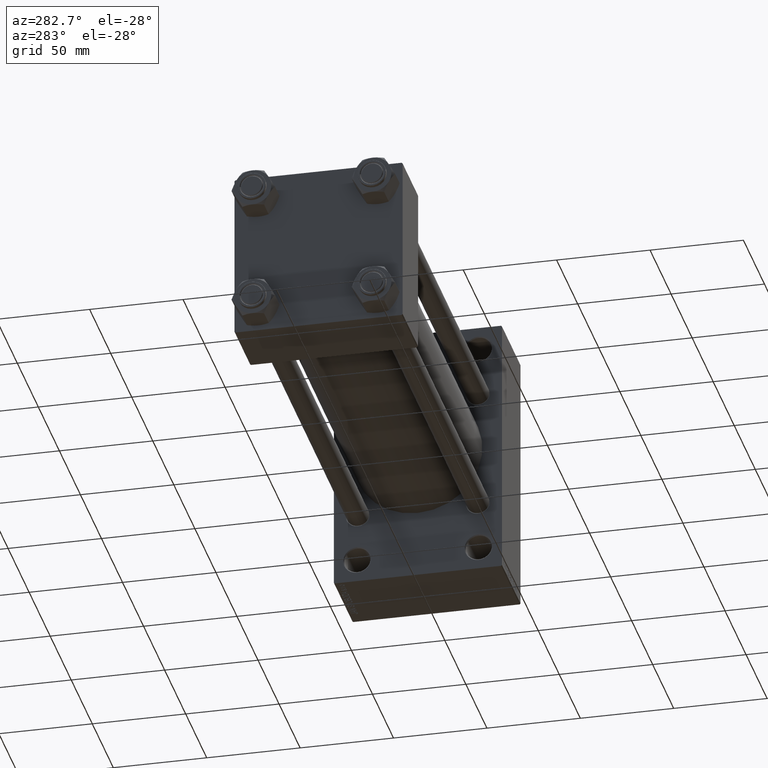
[diagram: clean part render]
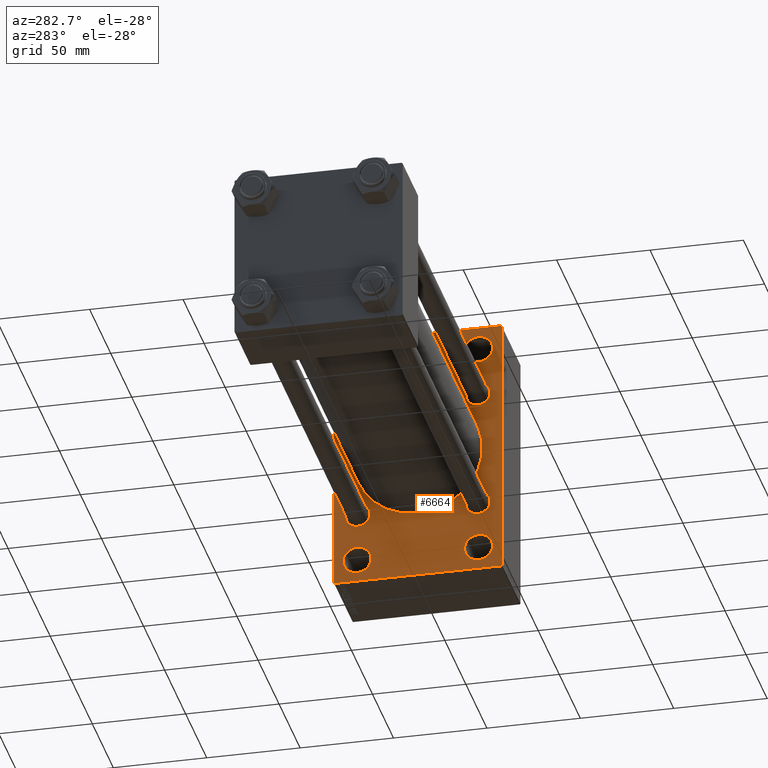
[diagram: same view with one face highlighted and labeled with its STEP entity id]
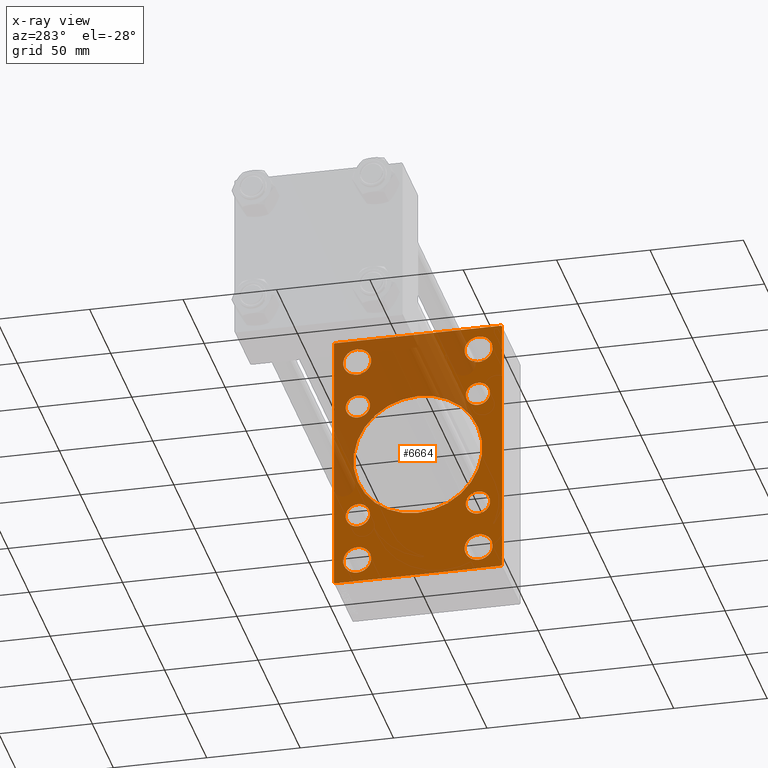
[diagram: x-ray of the same camera — body ghosted, the highlighted face saturated]
A machine part, auxiliary view. The second image highlights one B-rep face of the part: STEP entity #6664.
The next image is the same camera in x-ray: the body ghosted, the highlighted face saturated — about 39% of this face is hidden behind the body in this view.
In plain terms, the highlighted planar face has unit normal (-1, 0, 0).
Its self-contained STEP definition (entity closure, byte-faithful):
#146 = FACE_BOUND ( 'NONE', #16994, .T. ) ;
#624 = DIRECTION ( 'NONE',  ( -1.000000000000000000, 0.000000000000000000, -0.000000000000000000 ) ) ;
#946 = VERTEX_POINT ( 'NONE', #14741 ) ;
#951 = VERTEX_POINT ( 'NONE', #17379 ) ;
#1373 = ORIENTED_EDGE ( 'NONE', *, *, #7199, .F. ) ;
#1492 = DIRECTION ( 'NONE',  ( 1.000000000000000000, -0.000000000000000000, 0.000000000000000000 ) ) ;
#1612 = CARTESIAN_POINT ( 'NONE',  ( 236.0000000000000284, -32.50000000000000000, -58.49999999999999289 ) ) ;
#1715 = VERTEX_POINT ( 'NONE', #9282 ) ;
#2222 = DIRECTION ( 'NONE',  ( 1.000000000000000000, 0.000000000000000000, 0.000000000000000000 ) ) ;
#2293 = AXIS2_PLACEMENT_3D ( 'NONE', #44698, #1492, #40879 ) ;
#2393 = CARTESIAN_POINT ( 'NONE',  ( 236.0000000000000284, -32.14999999999997726, 32.15000000000001279 ) ) ;
#2903 = DIRECTION ( 'NONE',  ( 0.000000000000000000, 0.000000000000000000, 1.000000000000000000 ) ) ;
#2918 = VERTEX_POINT ( 'NONE', #18600 ) ;
#3457 = ORIENTED_EDGE ( 'NONE', *, *, #37472, .T. ) ;
#3730 = LINE ( 'NONE', #33059, #34147 ) ;
#3852 = VERTEX_POINT ( 'NONE', #32441 ) ;
#3890 = VERTEX_POINT ( 'NONE', #11927 ) ;
#3976 = FACE_BOUND ( 'NONE', #46977, .T. ) ;
#4479 = ORIENTED_EDGE ( 'NONE', *, *, #5261, .T. ) ;
#4675 = FACE_BOUND ( 'NONE', #44259, .T. ) ;
#4704 = CARTESIAN_POINT ( 'NONE',  ( 236.0000000000000284, 32.50000000000000711, -66.00000000000002842 ) ) ;
#4780 = CARTESIAN_POINT ( 'NONE',  ( 236.0000000000000284, -2.602085213965210642E-15, 34.50000000000000000 ) ) ;
#4902 = CARTESIAN_POINT ( 'NONE',  ( 236.0000000000000284, -32.50000000000000000, 58.50000000000000711 ) ) ;
#5067 = DIRECTION ( 'NONE',  ( 1.000000000000000000, 0.000000000000000000, 0.000000000000000000 ) ) ;
#5261 = EDGE_CURVE ( 'NONE', #946, #13400, #46078, .T. ) ;
#5270 = CIRCLE ( 'NONE', #40426, 6.500000000000005329 ) ;
#5304 = CIRCLE ( 'NONE', #39605, 7.500000000000034639 ) ;
#5469 = CARTESIAN_POINT ( 'NONE',  ( 236.0000000000000284, 32.14999999999999147, -32.15000000000000568 ) ) ;
#5733 = DIRECTION ( 'NONE',  ( 0.000000000000000000, -1.000000000000000000, -1.541976423090495387E-16 ) ) ;
#6093 = CIRCLE ( 'NONE', #25898, 34.50000000000000000 ) ;
#6097 = CIRCLE ( 'NONE', #38073, 7.500000000000034639 ) ;
#6664 = ADVANCED_FACE ( 'NONE', ( #3976, #26380, #4675, #11371, #33063, #40238, #146, #39995, #10892, #33298 ), #14710, .T. ) ;
#6946 = LINE ( 'NONE', #8375, #9888 ) ;
#6955 = DIRECTION ( 'NONE',  ( 0.000000000000000000, 0.000000000000000000, 1.000000000000000000 ) ) ;
#7067 = VERTEX_POINT ( 'NONE', #42782 ) ;
#7199 = EDGE_CURVE ( 'NONE', #9813, #40378, #44425, .T. ) ;
#7435 = DIRECTION ( 'NONE',  ( 0.000000000000000000, 0.000000000000000000, 1.000000000000000000 ) ) ;
#7518 = ORIENTED_EDGE ( 'NONE', *, *, #29818, .T. ) ;
#7939 = VECTOR ( 'NONE', #41423, 1000.000000000000114 ) ;
#8241 = ORIENTED_EDGE ( 'NONE', *, *, #37958, .T. ) ;
#8283 = LINE ( 'NONE', #37832, #7939 ) ;
#8368 = AXIS2_PLACEMENT_3D ( 'NONE', #20504, #16221, #12865 ) ;
#8375 = CARTESIAN_POINT ( 'NONE',  ( 236.0000000000000284, 45.00000000000001421, -70.99999999999998579 ) ) ;
#8661 = EDGE_LOOP ( 'NONE', ( #16165, #3457 ) ) ;
#8947 = AXIS2_PLACEMENT_3D ( 'NONE', #21451, #26434, #29536 ) ;
#9107 = EDGE_CURVE ( 'NONE', #20158, #2918, #43257, .T. ) ;
#9135 = AXIS2_PLACEMENT_3D ( 'NONE', #45156, #5067, #37985 ) ;
#9282 = CARTESIAN_POINT ( 'NONE',  ( 236.0000000000000284, -32.14999999999997726, 38.65000000000002700 ) ) ;
#9328 = DIRECTION ( 'NONE',  ( 0.000000000000000000, 0.000000000000000000, 1.000000000000000000 ) ) ;
#9371 = CIRCLE ( 'NONE', #42878, 7.500000000000041744 ) ;
#9560 = ORIENTED_EDGE ( 'NONE', *, *, #11477, .T. ) ;
#9643 = VERTEX_POINT ( 'NONE', #28339 ) ;
#9813 = VERTEX_POINT ( 'NONE', #40266 ) ;
#9888 = VECTOR ( 'NONE', #33169, 1000.000000000000000 ) ;
#10091 = EDGE_CURVE ( 'NONE', #38100, #44901, #13472, .T. ) ;
#10155 = CIRCLE ( 'NONE', #19258, 7.500000000000034639 ) ;
#10210 = CARTESIAN_POINT ( 'NONE',  ( 236.0000000000000284, 44.50000000000004263, -70.99999999999998579 ) ) ;
#10892 = FACE_BOUND ( 'NONE', #23136, .T. ) ;
#11086 = VECTOR ( 'NONE', #11730, 1000.000000000000000 ) ;
#11204 = EDGE_CURVE ( 'NONE', #34633, #29257, #34051, .T. ) ;
#11226 = AXIS2_PLACEMENT_3D ( 'NONE', #29118, #32692, #6955 ) ;
#11276 = EDGE_CURVE ( 'NONE', #1715, #14034, #29490, .T. ) ;
#11371 = FACE_BOUND ( 'NONE', #19879, .T. ) ;
#11477 = EDGE_CURVE ( 'NONE', #3890, #26836, #18847, .T. ) ;
#11730 = DIRECTION ( 'NONE',  ( 0.000000000000000000, 0.000000000000000000, -1.000000000000000000 ) ) ;
#11879 = ORIENTED_EDGE ( 'NONE', *, *, #12152, .T. ) ;
#11927 = CARTESIAN_POINT ( 'NONE',  ( 236.0000000000000284, 32.14999999999999147, 38.65000000000001279 ) ) ;
#12141 = DIRECTION ( 'NONE',  ( 0.000000000000000000, 0.000000000000000000, 1.000000000000000000 ) ) ;
#12152 = EDGE_CURVE ( 'NONE', #14034, #1715, #14284, .T. ) ;
#12225 = CARTESIAN_POINT ( 'NONE',  ( 236.0000000000000284, -32.14999999999997726, -38.65000000000001990 ) ) ;
#12865 = DIRECTION ( 'NONE',  ( 0.000000000000000000, 0.000000000000000000, 1.000000000000000000 ) ) ;
#12915 = EDGE_CURVE ( 'NONE', #42385, #40378, #37203, .T. ) ;
#12962 = ORIENTED_EDGE ( 'NONE', *, *, #11276, .T. ) ;
#13058 = CARTESIAN_POINT ( 'NONE',  ( 236.0000000000000284, -57.75000000000028422, 57.74999999999948841 ) ) ;
#13400 = VERTEX_POINT ( 'NONE', #4704 ) ;
#13445 = DIRECTION ( 'NONE',  ( 0.000000000000000000, -4.886545002751570165E-17, -1.000000000000000000 ) ) ;
#13472 = CIRCLE ( 'NONE', #40132, 7.500000000000034639 ) ;
#13790 = CIRCLE ( 'NONE', #30521, 6.500000000000005329 ) ;
#13864 = CARTESIAN_POINT ( 'NONE',  ( 236.0000000000000284, -32.14999999999997726, -32.15000000000001279 ) ) ;
#14034 = VERTEX_POINT ( 'NONE', #41452 ) ;
#14284 = CIRCLE ( 'NONE', #44778, 6.500000000000005329 ) ;
#14695 = ORIENTED_EDGE ( 'NONE', *, *, #29644, .T. ) ;
#14710 = PLANE ( 'NONE',  #23278 ) ;
#14741 = CARTESIAN_POINT ( 'NONE',  ( 236.0000000000000284, 32.50000000000000711, -50.99999999999996447 ) ) ;
#15976 = DIRECTION ( 'NONE',  ( 0.000000000000000000, 0.000000000000000000, 1.000000000000000000 ) ) ;
#16165 = ORIENTED_EDGE ( 'NONE', *, *, #19594, .T. ) ;
#16221 = DIRECTION ( 'NONE',  ( 1.000000000000000000, -0.000000000000000000, 0.000000000000000000 ) ) ;
#16230 = EDGE_LOOP ( 'NONE', ( #9560, #41826 ) ) ;
#16463 = VERTEX_POINT ( 'NONE', #26246 ) ;
#16747 = CARTESIAN_POINT ( 'NONE',  ( 236.0000000000000284, -32.50000000000000000, 58.50000000000000711 ) ) ;
#16994 = EDGE_LOOP ( 'NONE', ( #29562, #33118 ) ) ;
#17379 = CARTESIAN_POINT ( 'NONE',  ( 236.0000000000000284, 32.14999999999999147, -38.65000000000001279 ) ) ;
#17863 = DIRECTION ( 'NONE',  ( 0.000000000000000000, 0.000000000000000000, 1.000000000000000000 ) ) ;
#17885 = EDGE_CURVE ( 'NONE', #2918, #23469, #3730, .T. ) ;
#18600 = CARTESIAN_POINT ( 'NONE',  ( 236.0000000000000284, 45.00000000000001421, -70.50000000000001421 ) ) ;
#18847 = CIRCLE ( 'NONE', #8947, 6.499999999999999112 ) ;
#18987 = AXIS2_PLACEMENT_3D ( 'NONE', #5469, #24310, #15976 ) ;
#19258 = AXIS2_PLACEMENT_3D ( 'NONE', #4902, #30639, #26605 ) ;
#19361 = CARTESIAN_POINT ( 'NONE',  ( 236.0000000000000284, -44.99999999999997158, -70.50000000000000000 ) ) ;
#19387 = ORIENTED_EDGE ( 'NONE', *, *, #11204, .T. ) ;
#19594 = EDGE_CURVE ( 'NONE', #20269, #37603, #41870, .T. ) ;
#19879 = EDGE_LOOP ( 'NONE', ( #31875, #19387 ) ) ;
#20158 = VERTEX_POINT ( 'NONE', #37762 ) ;
#20269 = VERTEX_POINT ( 'NONE', #34166 ) ;
#20504 = CARTESIAN_POINT ( 'NONE',  ( 236.0000000000000284, 32.14999999999999147, -32.15000000000000568 ) ) ;
#20518 = CARTESIAN_POINT ( 'NONE',  ( 236.0000000000000284, 45.00000000000002132, 71.00000000000000000 ) ) ;
#20757 = DIRECTION ( 'NONE',  ( 1.000000000000000000, -0.000000000000000000, 0.000000000000000000 ) ) ;
#21253 = EDGE_CURVE ( 'NONE', #951, #16463, #28904, .T. ) ;
#21358 = VECTOR ( 'NONE', #31405, 1000.000000000000000 ) ;
#21451 = CARTESIAN_POINT ( 'NONE',  ( 236.0000000000000284, 32.14999999999999147, 32.15000000000000568 ) ) ;
#21700 = CARTESIAN_POINT ( 'NONE',  ( 236.0000000000000284, 32.50000000000000711, -58.50000000000000000 ) ) ;
#21790 = EDGE_CURVE ( 'NONE', #26836, #3890, #29725, .T. ) ;
#22128 = VERTEX_POINT ( 'NONE', #4780 ) ;
#22570 = EDGE_CURVE ( 'NONE', #9813, #7067, #45761, .T. ) ;
#22849 = CIRCLE ( 'NONE', #9135, 34.50000000000000000 ) ;
#23136 = EDGE_LOOP ( 'NONE', ( #14695, #41338 ) ) ;
#23236 = CARTESIAN_POINT ( 'NONE',  ( 236.0000000000000284, -44.49999999999994316, -71.00000000000000000 ) ) ;
#23278 = AXIS2_PLACEMENT_3D ( 'NONE', #29718, #624, #40951 ) ;
#23469 = VERTEX_POINT ( 'NONE', #10210 ) ;
#23672 = CIRCLE ( 'NONE', #18987, 6.500000000000005329 ) ;
#23712 = ORIENTED_EDGE ( 'NONE', *, *, #17885, .T. ) ;
#24310 = DIRECTION ( 'NONE',  ( 1.000000000000000000, -0.000000000000000000, 0.000000000000000000 ) ) ;
#24714 = CARTESIAN_POINT ( 'NONE',  ( 236.0000000000000284, 32.50000000000000711, 50.99999999999997868 ) ) ;
#24907 = EDGE_CURVE ( 'NONE', #9643, #7067, #38887, .T. ) ;
#25000 = VECTOR ( 'NONE', #29567, 1000.000000000000000 ) ;
#25898 = AXIS2_PLACEMENT_3D ( 'NONE', #31543, #2222, #38726 ) ;
#26081 = CARTESIAN_POINT ( 'NONE',  ( 236.0000000000000284, -32.50000000000000000, 66.00000000000004263 ) ) ;
#26122 = ORIENTED_EDGE ( 'NONE', *, *, #28630, .T. ) ;
#26246 = CARTESIAN_POINT ( 'NONE',  ( 236.0000000000000284, 32.14999999999999147, -25.64999999999999858 ) ) ;
#26257 = CARTESIAN_POINT ( 'NONE',  ( 236.0000000000000284, -32.14999999999997726, 32.15000000000001279 ) ) ;
#26380 = FACE_BOUND ( 'NONE', #8661, .T. ) ;
#26434 = DIRECTION ( 'NONE',  ( 1.000000000000000000, -0.000000000000000000, 0.000000000000000000 ) ) ;
#26436 = AXIS2_PLACEMENT_3D ( 'NONE', #26257, #41061, #45348 ) ;
#26605 = DIRECTION ( 'NONE',  ( 0.000000000000000000, 0.000000000000000000, 1.000000000000000000 ) ) ;
#26836 = VERTEX_POINT ( 'NONE', #34363 ) ;
#27064 = EDGE_CURVE ( 'NONE', #13400, #946, #5304, .T. ) ;
#27090 = CARTESIAN_POINT ( 'NONE',  ( 236.0000000000000284, -32.50000000000000000, 50.99999999999997868 ) ) ;
#27123 = EDGE_CURVE ( 'NONE', #29257, #34633, #6097, .T. ) ;
#27961 = DIRECTION ( 'NONE',  ( 1.000000000000000000, -0.000000000000000000, 0.000000000000000000 ) ) ;
#28339 = CARTESIAN_POINT ( 'NONE',  ( 236.0000000000000284, 44.50000000000002132, 71.00000000000000000 ) ) ;
#28630 = EDGE_CURVE ( 'NONE', #3852, #36315, #5270, .T. ) ;
#28904 = CIRCLE ( 'NONE', #8368, 6.500000000000005329 ) ;
#28915 = CARTESIAN_POINT ( 'NONE',  ( 236.0000000000000284, 45.00000000000002132, 71.00000000000000000 ) ) ;
#29050 = EDGE_CURVE ( 'NONE', #16463, #951, #23672, .T. ) ;
#29080 = DIRECTION ( 'NONE',  ( 0.000000000000000000, 0.000000000000000000, 1.000000000000000000 ) ) ;
#29118 = CARTESIAN_POINT ( 'NONE',  ( 236.0000000000000284, 32.50000000000000711, 58.50000000000000711 ) ) ;
#29257 = VERTEX_POINT ( 'NONE', #40928 ) ;
#29332 = CARTESIAN_POINT ( 'NONE',  ( 236.0000000000000284, -57.74999999999937472, -57.75000000000096634 ) ) ;
#29490 = CIRCLE ( 'NONE', #26436, 6.500000000000005329 ) ;
#29536 = DIRECTION ( 'NONE',  ( 0.000000000000000000, 0.000000000000000000, 1.000000000000000000 ) ) ;
#29562 = ORIENTED_EDGE ( 'NONE', *, *, #29050, .T. ) ;
#29567 = DIRECTION ( 'NONE',  ( 0.000000000000000000, -0.7071067811865573427, 0.7071067811865378028 ) ) ;
#29644 = EDGE_CURVE ( 'NONE', #22128, #45701, #22849, .T. ) ;
#29718 = CARTESIAN_POINT ( 'NONE',  ( 236.0000000000000284, 0.000000000000000000, 0.000000000000000000 ) ) ;
#29725 = CIRCLE ( 'NONE', #2293, 6.499999999999999112 ) ;
#29818 = EDGE_CURVE ( 'NONE', #23469, #42385, #6946, .T. ) ;
#30016 = CARTESIAN_POINT ( 'NONE',  ( 236.0000000000000284, 32.50000000000000711, 58.50000000000000711 ) ) ;
#30521 = AXIS2_PLACEMENT_3D ( 'NONE', #31431, #34547, #46490 ) ;
#30639 = DIRECTION ( 'NONE',  ( 1.000000000000000000, -0.000000000000000000, 0.000000000000000000 ) ) ;
#30691 = DIRECTION ( 'NONE',  ( 1.000000000000000000, -0.000000000000000000, 0.000000000000000000 ) ) ;
#30803 = EDGE_LOOP ( 'NONE', ( #7518, #42232, #1373, #38340, #45521, #38456, #34142, #23712 ) ) ;
#31223 = DIRECTION ( 'NONE',  ( 0.000000000000000000, 0.000000000000000000, 1.000000000000000000 ) ) ;
#31405 = DIRECTION ( 'NONE',  ( -0.000000000000000000, 0.7071067811865426878, 0.7071067811865524577 ) ) ;
#31431 = CARTESIAN_POINT ( 'NONE',  ( 236.0000000000000284, -32.14999999999997726, -32.15000000000001279 ) ) ;
#31543 = CARTESIAN_POINT ( 'NONE',  ( 236.0000000000000284, -2.602085213965210642E-15, 0.000000000000000000 ) ) ;
#31604 = EDGE_CURVE ( 'NONE', #45701, #22128, #6093, .T. ) ;
#31875 = ORIENTED_EDGE ( 'NONE', *, *, #27123, .T. ) ;
#31943 = ORIENTED_EDGE ( 'NONE', *, *, #33124, .T. ) ;
#32441 = CARTESIAN_POINT ( 'NONE',  ( 236.0000000000000284, -32.14999999999997726, -25.65000000000000568 ) ) ;
#32692 = DIRECTION ( 'NONE',  ( 1.000000000000000000, -0.000000000000000000, 0.000000000000000000 ) ) ;
#32779 = CARTESIAN_POINT ( 'NONE',  ( 236.0000000000000284, 1.622946243093158675E-15, -34.50000000000000000 ) ) ;
#33059 = CARTESIAN_POINT ( 'NONE',  ( 236.0000000000000284, 57.74999999999938893, -57.75000000000100187 ) ) ;
#33063 = FACE_BOUND ( 'NONE', #38398, .T. ) ;
#33118 = ORIENTED_EDGE ( 'NONE', *, *, #21253, .T. ) ;
#33124 = EDGE_CURVE ( 'NONE', #36315, #3852, #13790, .T. ) ;
#33169 = DIRECTION ( 'NONE',  ( 0.000000000000000000, -1.000000000000000000, -1.541976423090495633E-16 ) ) ;
#33298 = FACE_OUTER_BOUND ( 'NONE', #30803, .T. ) ;
#33367 = DIRECTION ( 'NONE',  ( 1.000000000000000000, -0.000000000000000000, 0.000000000000000000 ) ) ;
#34051 = CIRCLE ( 'NONE', #11226, 7.500000000000034639 ) ;
#34142 = ORIENTED_EDGE ( 'NONE', *, *, #9107, .T. ) ;
#34147 = VECTOR ( 'NONE', #44052, 999.9999999999998863 ) ;
#34166 = CARTESIAN_POINT ( 'NONE',  ( 236.0000000000000284, -32.50000000000000000, -50.99999999999995026 ) ) ;
#34363 = CARTESIAN_POINT ( 'NONE',  ( 236.0000000000000284, 32.14999999999999147, 25.65000000000000213 ) ) ;
#34547 = DIRECTION ( 'NONE',  ( 1.000000000000000000, -0.000000000000000000, 0.000000000000000000 ) ) ;
#34633 = VERTEX_POINT ( 'NONE', #24714 ) ;
#35059 = DIRECTION ( 'NONE',  ( 1.000000000000000000, -0.000000000000000000, 0.000000000000000000 ) ) ;
#36244 = DIRECTION ( 'NONE',  ( 1.000000000000000000, -0.000000000000000000, 0.000000000000000000 ) ) ;
#36315 = VERTEX_POINT ( 'NONE', #12225 ) ;
#37203 = LINE ( 'NONE', #29332, #25000 ) ;
#37241 = CARTESIAN_POINT ( 'NONE',  ( 236.0000000000000284, -44.99999999999997158, 70.99999999999998579 ) ) ;
#37472 = EDGE_CURVE ( 'NONE', #37603, #20269, #9371, .T. ) ;
#37603 = VERTEX_POINT ( 'NONE', #40288 ) ;
#37762 = CARTESIAN_POINT ( 'NONE',  ( 236.0000000000000284, 45.00000000000002132, 70.50000000000000000 ) ) ;
#37832 = CARTESIAN_POINT ( 'NONE',  ( 236.0000000000000284, 57.75000000000000000, 57.75000000000000000 ) ) ;
#37958 = EDGE_CURVE ( 'NONE', #44901, #38100, #10155, .T. ) ;
#37985 = DIRECTION ( 'NONE',  ( 0.000000000000000000, 0.000000000000000000, -1.000000000000000000 ) ) ;
#38073 = AXIS2_PLACEMENT_3D ( 'NONE', #30016, #33367, #12141 ) ;
#38100 = VERTEX_POINT ( 'NONE', #26081 ) ;
#38223 = DIRECTION ( 'NONE',  ( 1.000000000000000000, -0.000000000000000000, 0.000000000000000000 ) ) ;
#38340 = ORIENTED_EDGE ( 'NONE', *, *, #22570, .T. ) ;
#38398 = EDGE_LOOP ( 'NONE', ( #12962, #11879 ) ) ;
#38456 = ORIENTED_EDGE ( 'NONE', *, *, #44819, .T. ) ;
#38726 = DIRECTION ( 'NONE',  ( 0.000000000000000000, 0.000000000000000000, -1.000000000000000000 ) ) ;
#38801 = AXIS2_PLACEMENT_3D ( 'NONE', #1612, #30691, #7435 ) ;
#38887 = LINE ( 'NONE', #20518, #46643 ) ;
#39165 = DIRECTION ( 'NONE',  ( 0.000000000000000000, 0.000000000000000000, 1.000000000000000000 ) ) ;
#39605 = AXIS2_PLACEMENT_3D ( 'NONE', #21700, #36244, #29080 ) ;
#39995 = FACE_BOUND ( 'NONE', #41141, .T. ) ;
#40132 = AXIS2_PLACEMENT_3D ( 'NONE', #16747, #38223, #2903 ) ;
#40238 = FACE_BOUND ( 'NONE', #16230, .T. ) ;
#40266 = CARTESIAN_POINT ( 'NONE',  ( 236.0000000000000284, -44.99999999999997158, 70.49999999999998579 ) ) ;
#40288 = CARTESIAN_POINT ( 'NONE',  ( 236.0000000000000284, -32.50000000000000000, -66.00000000000002842 ) ) ;
#40378 = VERTEX_POINT ( 'NONE', #19361 ) ;
#40426 = AXIS2_PLACEMENT_3D ( 'NONE', #13864, #43437, #39165 ) ;
#40722 = AXIS2_PLACEMENT_3D ( 'NONE', #41288, #35059, #31223 ) ;
#40879 = DIRECTION ( 'NONE',  ( 0.000000000000000000, 0.000000000000000000, 1.000000000000000000 ) ) ;
#40928 = CARTESIAN_POINT ( 'NONE',  ( 236.0000000000000284, 32.50000000000000711, 66.00000000000004263 ) ) ;
#40951 = DIRECTION ( 'NONE',  ( -0.000000000000000000, 0.000000000000000000, 1.000000000000000000 ) ) ;
#41061 = DIRECTION ( 'NONE',  ( 1.000000000000000000, -0.000000000000000000, 0.000000000000000000 ) ) ;
#41141 = EDGE_LOOP ( 'NONE', ( #26122, #31943 ) ) ;
#41288 = CARTESIAN_POINT ( 'NONE',  ( 236.0000000000000284, 32.50000000000000711, -58.50000000000000000 ) ) ;
#41338 = ORIENTED_EDGE ( 'NONE', *, *, #31604, .T. ) ;
#41423 = DIRECTION ( 'NONE',  ( 0.000000000000000000, 0.7071067811865474617, -0.7071067811865474617 ) ) ;
#41452 = CARTESIAN_POINT ( 'NONE',  ( 236.0000000000000284, -32.14999999999997726, 25.65000000000000213 ) ) ;
#41826 = ORIENTED_EDGE ( 'NONE', *, *, #21790, .T. ) ;
#41870 = CIRCLE ( 'NONE', #38801, 7.500000000000041744 ) ;
#42220 = ORIENTED_EDGE ( 'NONE', *, *, #27064, .T. ) ;
#42232 = ORIENTED_EDGE ( 'NONE', *, *, #12915, .T. ) ;
#42385 = VERTEX_POINT ( 'NONE', #23236 ) ;
#42782 = CARTESIAN_POINT ( 'NONE',  ( 236.0000000000000284, -44.49999999999995026, 70.99999999999998579 ) ) ;
#42878 = AXIS2_PLACEMENT_3D ( 'NONE', #47215, #27961, #17863 ) ;
#43257 = LINE ( 'NONE', #28915, #43922 ) ;
#43437 = DIRECTION ( 'NONE',  ( 1.000000000000000000, -0.000000000000000000, 0.000000000000000000 ) ) ;
#43922 = VECTOR ( 'NONE', #13445, 1000.000000000000000 ) ;
#44052 = DIRECTION ( 'NONE',  ( -0.000000000000000000, -0.7071067811865574537, -0.7071067811865376918 ) ) ;
#44259 = EDGE_LOOP ( 'NONE', ( #4479, #42220 ) ) ;
#44425 = LINE ( 'NONE', #37241, #11086 ) ;
#44698 = CARTESIAN_POINT ( 'NONE',  ( 236.0000000000000284, 32.14999999999999147, 32.15000000000000568 ) ) ;
#44778 = AXIS2_PLACEMENT_3D ( 'NONE', #2393, #20757, #9328 ) ;
#44819 = EDGE_CURVE ( 'NONE', #9643, #20158, #8283, .T. ) ;
#44901 = VERTEX_POINT ( 'NONE', #27090 ) ;
#45109 = ORIENTED_EDGE ( 'NONE', *, *, #10091, .T. ) ;
#45156 = CARTESIAN_POINT ( 'NONE',  ( 236.0000000000000284, -2.602085213965210642E-15, 0.000000000000000000 ) ) ;
#45348 = DIRECTION ( 'NONE',  ( 0.000000000000000000, 0.000000000000000000, 1.000000000000000000 ) ) ;
#45521 = ORIENTED_EDGE ( 'NONE', *, *, #24907, .F. ) ;
#45701 = VERTEX_POINT ( 'NONE', #32779 ) ;
#45761 = LINE ( 'NONE', #13058, #21358 ) ;
#46078 = CIRCLE ( 'NONE', #40722, 7.500000000000034639 ) ;
#46490 = DIRECTION ( 'NONE',  ( 0.000000000000000000, 0.000000000000000000, 1.000000000000000000 ) ) ;
#46643 = VECTOR ( 'NONE', #5733, 1000.000000000000000 ) ;
#46977 = EDGE_LOOP ( 'NONE', ( #45109, #8241 ) ) ;
#47215 = CARTESIAN_POINT ( 'NONE',  ( 236.0000000000000284, -32.50000000000000000, -58.49999999999999289 ) ) ;